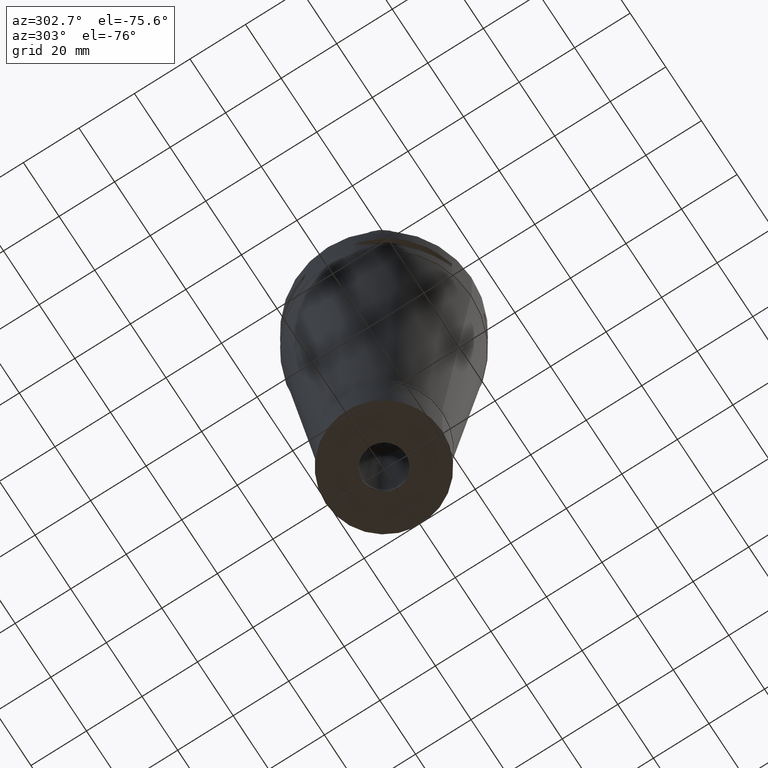
[diagram: clean part render]
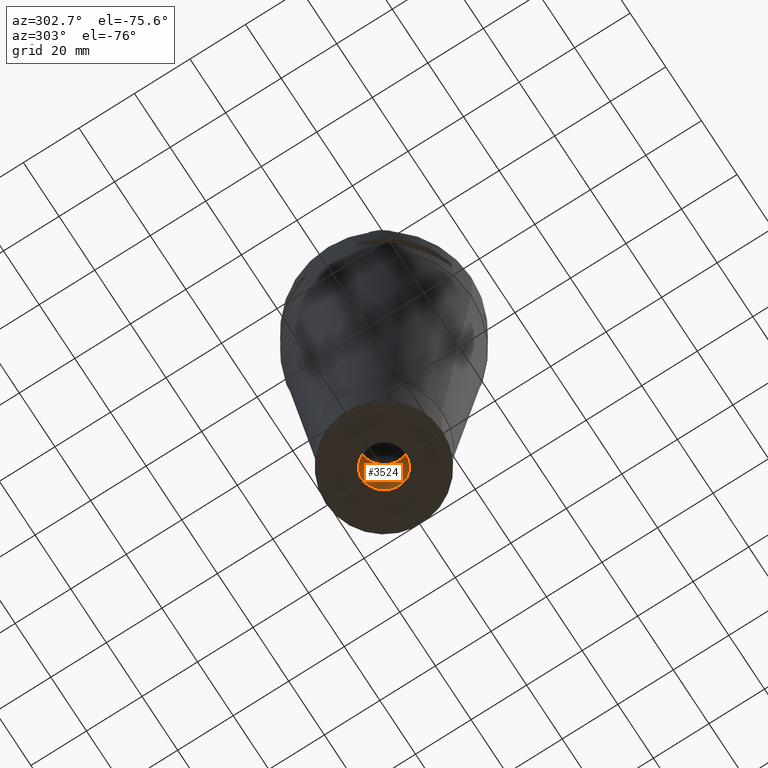
[diagram: same view with one face highlighted and labeled with its STEP entity id]
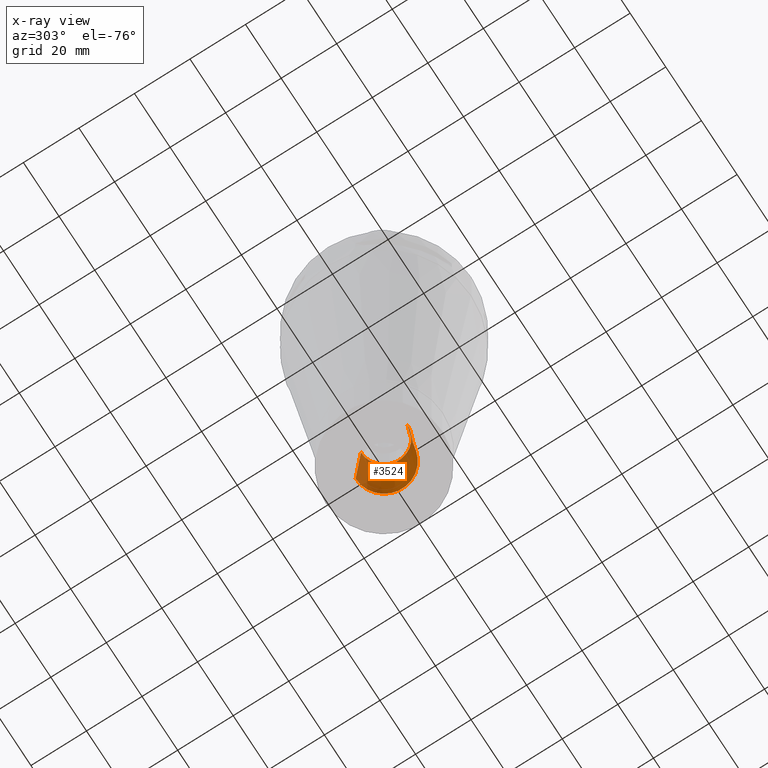
[diagram: x-ray of the same camera — body ghosted, the highlighted face saturated]
A machine part, auxiliary view. The second image highlights one B-rep face of the part: STEP entity #3524.
The next image is the same camera in x-ray: the body ghosted, the highlighted face saturated — about 5% of this face is hidden behind the body in this view.
In plain terms, the highlighted conical surface has half-angle 4 deg.
Its self-contained STEP definition (entity closure, byte-faithful):
#125 = VERTEX_POINT ( 'NONE', #3385 ) ;
#212 = CARTESIAN_POINT ( 'NONE',  ( 0.0000000000000000000, 8.300000000000000711, -129.6137007993999930 ) ) ;
#515 = AXIS2_PLACEMENT_3D ( 'NONE', #2592, #4121, #3730 ) ;
#666 = CIRCLE ( 'NONE', #3029, 10.25000000000000000 ) ;
#700 = CARTESIAN_POINT ( 'NONE',  ( 0.0000000000000000000, 10.25000000000000000, -157.5000000000000000 ) ) ;
#999 = CARTESIAN_POINT ( 'NONE',  ( 0.0000000000000000000, -8.300000000000000711, -129.6137007993999930 ) ) ;
#1001 = CONICAL_SURFACE ( 'NONE', #2710, 9.275000000000000355, 0.06981317007975955391 ) ;
#1021 = CARTESIAN_POINT ( 'NONE',  ( 0.0000000000000000000, -10.25000000000000000, -157.5000000000000000 ) ) ;
#1067 = EDGE_LOOP ( 'NONE', ( #4958, #4663, #3566, #4099 ) ) ;
#1332 = EDGE_CURVE ( 'NONE', #3023, #3665, #2059, .T. ) ;
#1408 = VECTOR ( 'NONE', #4036, 1000.000000000000114 ) ;
#1515 = DIRECTION ( 'NONE',  ( 0.0000000000000000000, -0.06975647374411181323, 0.9975640502598251969 ) ) ;
#1677 = EDGE_CURVE ( 'NONE', #4808, #3665, #3624, .T. ) ;
#1941 = FACE_OUTER_BOUND ( 'NONE', #1067, .T. ) ;
#2059 = CIRCLE ( 'NONE', #515, 8.300000000000000711 ) ;
#2252 = LINE ( 'NONE', #700, #4177 ) ;
#2581 = EDGE_CURVE ( 'NONE', #125, #3023, #2252, .T. ) ;
#2592 = CARTESIAN_POINT ( 'NONE',  ( 0.0000000000000000000, -1.758064373376999956E-14, -129.6137007993999930 ) ) ;
#2710 = AXIS2_PLACEMENT_3D ( 'NONE', #3174, #3094, #3152 ) ;
#2935 = DIRECTION ( 'NONE',  ( 0.0000000000000000000, 0.0000000000000000000, -1.000000000000000000 ) ) ;
#3023 = VERTEX_POINT ( 'NONE', #212 ) ;
#3029 = AXIS2_PLACEMENT_3D ( 'NONE', #3649, #2935, #4871 ) ;
#3094 = DIRECTION ( 'NONE',  ( 0.0000000000000000000, 0.0000000000000000000, -1.000000000000000000 ) ) ;
#3152 = DIRECTION ( 'NONE',  ( 0.0000000000000000000, -1.000000000000000000, 0.0000000000000000000 ) ) ;
#3174 = CARTESIAN_POINT ( 'NONE',  ( 0.0000000000000000000, -1.758064373376999956E-14, -143.5568503997000107 ) ) ;
#3285 = EDGE_CURVE ( 'NONE', #125, #4808, #666, .T. ) ;
#3385 = CARTESIAN_POINT ( 'NONE',  ( 0.0000000000000000000, 10.25000000000000000, -157.5000000000000000 ) ) ;
#3524 = ADVANCED_FACE ( 'NONE', ( #1941 ), #1001, .F. ) ;
#3566 = ORIENTED_EDGE ( 'NONE', *, *, #1332, .F. ) ;
#3624 = LINE ( 'NONE', #1021, #1408 ) ;
#3649 = CARTESIAN_POINT ( 'NONE',  ( 0.0000000000000000000, -1.758064373376999956E-14, -157.5000000000000000 ) ) ;
#3665 = VERTEX_POINT ( 'NONE', #999 ) ;
#3730 = DIRECTION ( 'NONE',  ( 0.0000000000000000000, 1.000000000000000000, 0.0000000000000000000 ) ) ;
#4036 = DIRECTION ( 'NONE',  ( 0.0000000000000000000, 0.06975647374411181323, 0.9975640502598251969 ) ) ;
#4099 = ORIENTED_EDGE ( 'NONE', *, *, #2581, .F. ) ;
#4121 = DIRECTION ( 'NONE',  ( 0.0000000000000000000, 0.0000000000000000000, -1.000000000000000000 ) ) ;
#4131 = CARTESIAN_POINT ( 'NONE',  ( 0.0000000000000000000, -10.25000000000000000, -157.5000000000000000 ) ) ;
#4177 = VECTOR ( 'NONE', #1515, 1000.000000000000114 ) ;
#4663 = ORIENTED_EDGE ( 'NONE', *, *, #1677, .T. ) ;
#4808 = VERTEX_POINT ( 'NONE', #4131 ) ;
#4871 = DIRECTION ( 'NONE',  ( 0.0000000000000000000, 1.000000000000000000, 0.0000000000000000000 ) ) ;
#4958 = ORIENTED_EDGE ( 'NONE', *, *, #3285, .T. ) ;